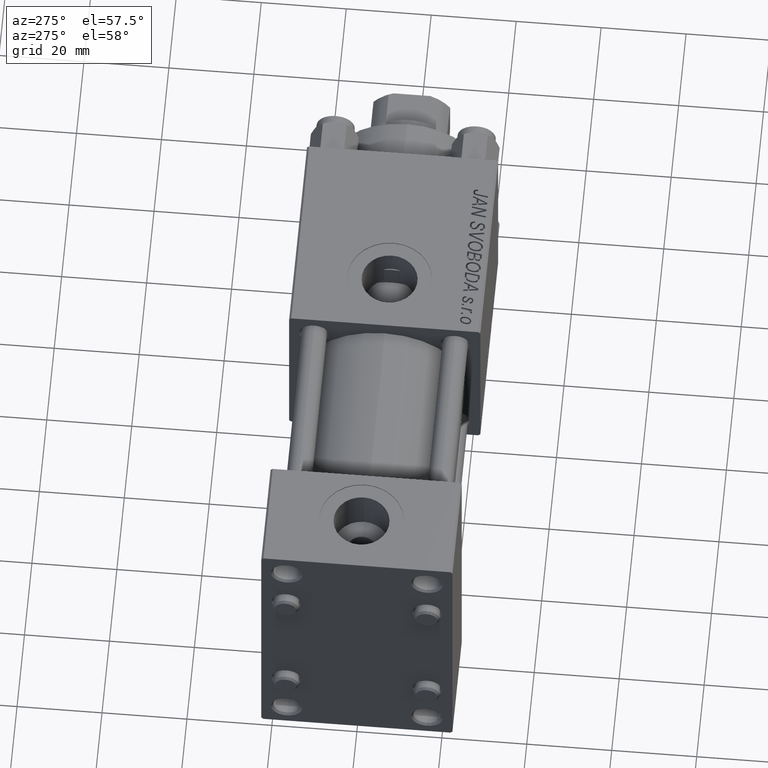
[diagram: clean part render]
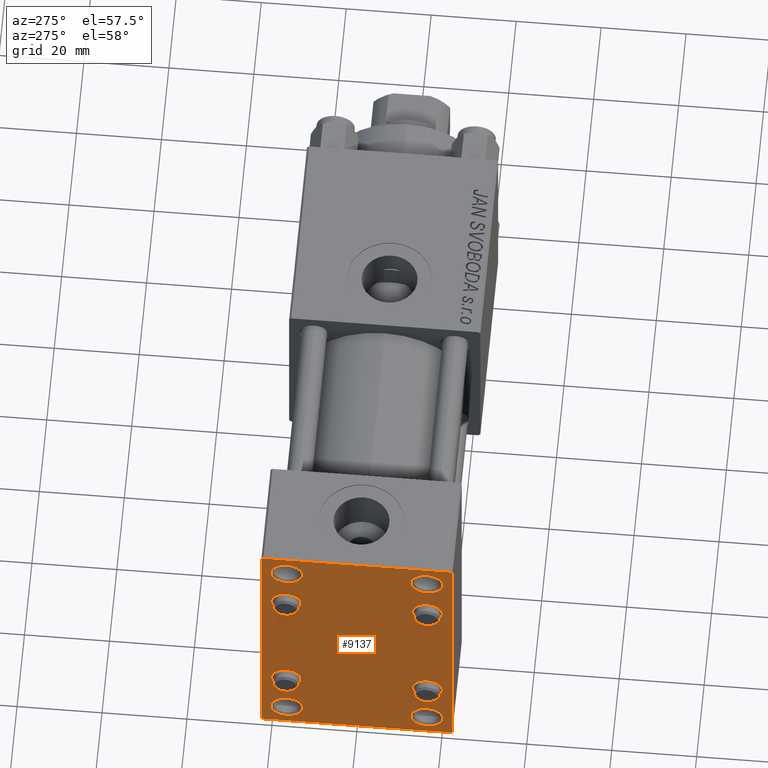
[diagram: same view with one face highlighted and labeled with its STEP entity id]
A machine part, auxiliary view. The second image highlights one B-rep face of the part: STEP entity #9137.
In plain terms, the highlighted planar face has unit normal (-1, 0, 0).
Its self-contained STEP definition (entity closure, byte-faithful):
#227 = VERTEX_POINT ( 'NONE', #2477 ) ;
#798 = DIRECTION ( 'NONE',  ( -1.000000000000000000, 0.000000000000000000, -0.000000000000000000 ) ) ;
#898 = DIRECTION ( 'NONE',  ( 0.000000000000000000, 0.7071067811865376918, -0.7071067811865574537 ) ) ;
#1069 = VERTEX_POINT ( 'NONE', #49465 ) ;
#1468 = ORIENTED_EDGE ( 'NONE', *, *, #22537, .T. ) ;
#1559 = DIRECTION ( 'NONE',  ( 1.000000000000000000, -0.000000000000000000, 0.000000000000000000 ) ) ;
#1585 = VERTEX_POINT ( 'NONE', #9949 ) ;
#1753 = DIRECTION ( 'NONE',  ( 0.000000000000000000, 0.000000000000000000, 1.000000000000000000 ) ) ;
#1759 = ORIENTED_EDGE ( 'NONE', *, *, #24240, .T. ) ;
#1772 = CARTESIAN_POINT ( 'NONE',  ( 0.000000000000000000, 22.50000000000000355, 35.00000000000000711 ) ) ;
#1802 = DIRECTION ( 'NONE',  ( 0.000000000000000000, 0.000000000000000000, 1.000000000000000000 ) ) ;
#1866 = AXIS2_PLACEMENT_3D ( 'NONE', #19837, #35723, #23878 ) ;
#2282 = EDGE_CURVE ( 'NONE', #22545, #38931, #8978, .T. ) ;
#2477 = CARTESIAN_POINT ( 'NONE',  ( 0.000000000000000000, -16.59999999999999076, -20.10000000000000497 ) ) ;
#2502 = CARTESIAN_POINT ( 'NONE',  ( 0.000000000000000000, 16.49999999999999289, -25.25000000000003553 ) ) ;
#3841 = LINE ( 'NONE', #30855, #44626 ) ;
#4108 = VERTEX_POINT ( 'NONE', #26449 ) ;
#4423 = VERTEX_POINT ( 'NONE', #17340 ) ;
#4461 = VECTOR ( 'NONE', #6079, 1000.000000000000000 ) ;
#4536 = CIRCLE ( 'NONE', #5334, 3.749999999999972022 ) ;
#4631 = AXIS2_PLACEMENT_3D ( 'NONE', #47011, #42962, #8354 ) ;
#5013 = CARTESIAN_POINT ( 'NONE',  ( 0.000000000000000000, 16.59999999999999787, -16.60000000000000497 ) ) ;
#5301 = VERTEX_POINT ( 'NONE', #32738 ) ;
#5317 = DIRECTION ( 'NONE',  ( 0.000000000000000000, -1.000000000000000000, -1.541976423090495387E-16 ) ) ;
#5334 = AXIS2_PLACEMENT_3D ( 'NONE', #36348, #10065, #1753 ) ;
#5501 = VERTEX_POINT ( 'NONE', #20334 ) ;
#5532 = EDGE_CURVE ( 'NONE', #5501, #1585, #23662, .T. ) ;
#5779 = DIRECTION ( 'NONE',  ( 1.000000000000000000, -0.000000000000000000, 0.000000000000000000 ) ) ;
#6079 = DIRECTION ( 'NONE',  ( 0.000000000000000000, -1.000000000000000000, -1.541976423090495387E-16 ) ) ;
#6629 = DIRECTION ( 'NONE',  ( 0.000000000000000000, 0.000000000000000000, -1.000000000000000000 ) ) ;
#6984 = DIRECTION ( 'NONE',  ( 1.000000000000000000, -0.000000000000000000, 0.000000000000000000 ) ) ;
#7139 = EDGE_CURVE ( 'NONE', #38931, #10274, #37685, .T. ) ;
#7460 = DIRECTION ( 'NONE',  ( 0.000000000000000000, 0.000000000000000000, 1.000000000000000000 ) ) ;
#7604 = DIRECTION ( 'NONE',  ( 0.000000000000000000, -0.7071067811865426878, 0.7071067811865524577 ) ) ;
#7918 = CARTESIAN_POINT ( 'NONE',  ( 0.000000000000000000, 16.59999999999999787, -16.60000000000000497 ) ) ;
#7964 = VERTEX_POINT ( 'NONE', #35762 ) ;
#8354 = DIRECTION ( 'NONE',  ( 0.000000000000000000, 0.000000000000000000, 1.000000000000000000 ) ) ;
#8413 = DIRECTION ( 'NONE',  ( 1.000000000000000000, -0.000000000000000000, 0.000000000000000000 ) ) ;
#8444 = EDGE_CURVE ( 'NONE', #1585, #5501, #26951, .T. ) ;
#8978 = LINE ( 'NONE', #15810, #34830 ) ;
#9137 = ADVANCED_FACE ( 'NONE', ( #32341, #48016, #28054, #39186, #24287, #9374, #32095, #19999, #12914 ), #35387, .T. ) ;
#9374 = FACE_BOUND ( 'NONE', #16153, .T. ) ;
#9573 = CARTESIAN_POINT ( 'NONE',  ( 0.000000000000000000, 16.49999999999999289, -29.00000000000000711 ) ) ;
#9949 = CARTESIAN_POINT ( 'NONE',  ( 0.000000000000000000, 16.59999999999999787, 13.10000000000000675 ) ) ;
#10065 = DIRECTION ( 'NONE',  ( 1.000000000000000000, -0.000000000000000000, 0.000000000000000000 ) ) ;
#10233 = EDGE_CURVE ( 'NONE', #33217, #25602, #14401, .T. ) ;
#10274 = VERTEX_POINT ( 'NONE', #33329 ) ;
#10430 = AXIS2_PLACEMENT_3D ( 'NONE', #15070, #6984, #26424 ) ;
#10530 = CARTESIAN_POINT ( 'NONE',  ( 0.000000000000000000, -16.59999999999999076, 13.10000000000001030 ) ) ;
#10989 = EDGE_CURVE ( 'NONE', #4108, #34941, #31096, .T. ) ;
#11109 = DIRECTION ( 'NONE',  ( 1.000000000000000000, -0.000000000000000000, 0.000000000000000000 ) ) ;
#11718 = ORIENTED_EDGE ( 'NONE', *, *, #22803, .F. ) ;
#11829 = CIRCLE ( 'NONE', #32003, 3.749999999999972022 ) ;
#11975 = CIRCLE ( 'NONE', #25685, 3.499999999999996003 ) ;
#12005 = VECTOR ( 'NONE', #5317, 1000.000000000000000 ) ;
#12055 = EDGE_CURVE ( 'NONE', #227, #48681, #39194, .T. ) ;
#12156 = LINE ( 'NONE', #30823, #38343 ) ;
#12789 = AXIS2_PLACEMENT_3D ( 'NONE', #5013, #23723, #35577 ) ;
#12914 = FACE_OUTER_BOUND ( 'NONE', #13879, .T. ) ;
#13156 = CARTESIAN_POINT ( 'NONE',  ( 0.000000000000000000, 0.000000000000000000, 0.000000000000000000 ) ) ;
#13406 = DIRECTION ( 'NONE',  ( -0.000000000000000000, 0.000000000000000000, 1.000000000000000000 ) ) ;
#13786 = LINE ( 'NONE', #20873, #47392 ) ;
#13879 = EDGE_LOOP ( 'NONE', ( #40029, #41841, #23654, #29619, #41019, #45631, #11718, #14119 ) ) ;
#13881 = EDGE_LOOP ( 'NONE', ( #28978, #1759 ) ) ;
#13897 = CARTESIAN_POINT ( 'NONE',  ( 0.000000000000000000, 16.59999999999999787, -20.10000000000000142 ) ) ;
#14099 = CARTESIAN_POINT ( 'NONE',  ( 0.000000000000000000, 16.49999999999999289, 32.75000000000003553 ) ) ;
#14119 = ORIENTED_EDGE ( 'NONE', *, *, #2282, .T. ) ;
#14219 = DIRECTION ( 'NONE',  ( 0.000000000000000000, 0.000000000000000000, 1.000000000000000000 ) ) ;
#14401 = LINE ( 'NONE', #14651, #4461 ) ;
#14463 = AXIS2_PLACEMENT_3D ( 'NONE', #45614, #41824, #7460 ) ;
#14651 = CARTESIAN_POINT ( 'NONE',  ( 0.000000000000000000, 22.50000000000000355, -34.99999999999999289 ) ) ;
#15070 = CARTESIAN_POINT ( 'NONE',  ( 0.000000000000000000, 16.49999999999999289, 28.99999999999998934 ) ) ;
#15257 = ORIENTED_EDGE ( 'NONE', *, *, #47745, .T. ) ;
#15494 = ORIENTED_EDGE ( 'NONE', *, *, #49920, .T. ) ;
#15720 = DIRECTION ( 'NONE',  ( 1.000000000000000000, -0.000000000000000000, 0.000000000000000000 ) ) ;
#15810 = CARTESIAN_POINT ( 'NONE',  ( 0.000000000000000000, 28.50000000000030909, 28.49999999999952038 ) ) ;
#16030 = AXIS2_PLACEMENT_3D ( 'NONE', #9573, #5779, #44422 ) ;
#16153 = EDGE_LOOP ( 'NONE', ( #42821, #34555 ) ) ;
#16189 = CARTESIAN_POINT ( 'NONE',  ( 0.000000000000000000, 16.59999999999999787, -13.10000000000000675 ) ) ;
#16489 = ORIENTED_EDGE ( 'NONE', *, *, #45737, .T. ) ;
#16625 = CARTESIAN_POINT ( 'NONE',  ( 0.000000000000000000, 16.49999999999999289, -32.74999999999997868 ) ) ;
#16646 = EDGE_CURVE ( 'NONE', #35562, #1069, #4536, .T. ) ;
#17340 = CARTESIAN_POINT ( 'NONE',  ( 0.000000000000000000, -22.49999999999999645, -34.50000000000000000 ) ) ;
#17365 = CARTESIAN_POINT ( 'NONE',  ( 0.000000000000000000, 21.99999999999999645, -34.99999999999999289 ) ) ;
#17423 = AXIS2_PLACEMENT_3D ( 'NONE', #19449, #11109, #49762 ) ;
#17734 = EDGE_CURVE ( 'NONE', #1069, #35562, #11829, .T. ) ;
#18325 = AXIS2_PLACEMENT_3D ( 'NONE', #28281, #24509, #32319 ) ;
#19035 = DIRECTION ( 'NONE',  ( 0.000000000000000000, 0.000000000000000000, 1.000000000000000000 ) ) ;
#19175 = EDGE_CURVE ( 'NONE', #10274, #33217, #13786, .T. ) ;
#19449 = CARTESIAN_POINT ( 'NONE',  ( 0.000000000000000000, -16.59999999999999076, -16.60000000000000853 ) ) ;
#19837 = CARTESIAN_POINT ( 'NONE',  ( 0.000000000000000000, 16.59999999999999787, 16.60000000000000497 ) ) ;
#19944 = DIRECTION ( 'NONE',  ( 1.000000000000000000, -0.000000000000000000, 0.000000000000000000 ) ) ;
#19999 = FACE_BOUND ( 'NONE', #34586, .T. ) ;
#20150 = CARTESIAN_POINT ( 'NONE',  ( 0.000000000000000000, -16.59999999999999076, -13.10000000000001030 ) ) ;
#20334 = CARTESIAN_POINT ( 'NONE',  ( 0.000000000000000000, 16.59999999999999787, 20.10000000000000142 ) ) ;
#20873 = CARTESIAN_POINT ( 'NONE',  ( 0.000000000000000000, 28.49999999999984013, -28.50000000000024158 ) ) ;
#21272 = EDGE_CURVE ( 'NONE', #40726, #33451, #43425, .T. ) ;
#21304 = VECTOR ( 'NONE', #6629, 1000.000000000000000 ) ;
#21623 = AXIS2_PLACEMENT_3D ( 'NONE', #46828, #24080, #38732 ) ;
#21960 = EDGE_LOOP ( 'NONE', ( #44045, #15494 ) ) ;
#22537 = EDGE_CURVE ( 'NONE', #44504, #43905, #11975, .T. ) ;
#22545 = VERTEX_POINT ( 'NONE', #46568 ) ;
#22616 = DIRECTION ( 'NONE',  ( -0.000000000000000000, -0.7071067811865525687, -0.7071067811865425767 ) ) ;
#22803 = EDGE_CURVE ( 'NONE', #22545, #36429, #43474, .T. ) ;
#22904 = CARTESIAN_POINT ( 'NONE',  ( 0.000000000000000000, -16.50000000000000711, -32.74999999999997868 ) ) ;
#23075 = AXIS2_PLACEMENT_3D ( 'NONE', #32599, #1559, #1802 ) ;
#23299 = DIRECTION ( 'NONE',  ( 0.000000000000000000, 0.000000000000000000, -1.000000000000000000 ) ) ;
#23356 = VECTOR ( 'NONE', #35323, 1000.000000000000000 ) ;
#23654 = ORIENTED_EDGE ( 'NONE', *, *, #10233, .T. ) ;
#23662 = CIRCLE ( 'NONE', #1866, 3.499999999999996003 ) ;
#23716 = DIRECTION ( 'NONE',  ( 1.000000000000000000, -0.000000000000000000, 0.000000000000000000 ) ) ;
#23723 = DIRECTION ( 'NONE',  ( 1.000000000000000000, -0.000000000000000000, 0.000000000000000000 ) ) ;
#23806 = DIRECTION ( 'NONE',  ( 0.000000000000000000, 0.000000000000000000, 1.000000000000000000 ) ) ;
#23878 = DIRECTION ( 'NONE',  ( 0.000000000000000000, 0.000000000000000000, 1.000000000000000000 ) ) ;
#24074 = EDGE_CURVE ( 'NONE', #7964, #36429, #47719, .T. ) ;
#24080 = DIRECTION ( 'NONE',  ( 1.000000000000000000, -0.000000000000000000, 0.000000000000000000 ) ) ;
#24240 = EDGE_CURVE ( 'NONE', #33451, #40726, #32217, .T. ) ;
#24287 = FACE_BOUND ( 'NONE', #21960, .T. ) ;
#24509 = DIRECTION ( 'NONE',  ( 1.000000000000000000, -0.000000000000000000, 0.000000000000000000 ) ) ;
#25102 = CARTESIAN_POINT ( 'NONE',  ( 0.000000000000000000, 16.59999999999999787, 16.60000000000000497 ) ) ;
#25602 = VERTEX_POINT ( 'NONE', #25837 ) ;
#25685 = AXIS2_PLACEMENT_3D ( 'NONE', #7918, #8413, #19035 ) ;
#25837 = CARTESIAN_POINT ( 'NONE',  ( 0.000000000000000000, -21.99999999999998934, -35.00000000000000000 ) ) ;
#26424 = DIRECTION ( 'NONE',  ( 0.000000000000000000, 0.000000000000000000, 1.000000000000000000 ) ) ;
#26449 = CARTESIAN_POINT ( 'NONE',  ( 0.000000000000000000, -16.59999999999999076, 20.10000000000000853 ) ) ;
#26951 = CIRCLE ( 'NONE', #38283, 3.499999999999996003 ) ;
#26998 = DIRECTION ( 'NONE',  ( 0.000000000000000000, 0.000000000000000000, 1.000000000000000000 ) ) ;
#27335 = VERTEX_POINT ( 'NONE', #16625 ) ;
#27548 = CARTESIAN_POINT ( 'NONE',  ( 0.000000000000000000, 16.49999999999999289, 25.24999999999994671 ) ) ;
#28054 = FACE_BOUND ( 'NONE', #36157, .T. ) ;
#28059 = CIRCLE ( 'NONE', #47451, 3.749999999999975575 ) ;
#28125 = CIRCLE ( 'NONE', #16030, 3.749999999999972022 ) ;
#28281 = CARTESIAN_POINT ( 'NONE',  ( 0.000000000000000000, -16.59999999999999076, -16.60000000000000853 ) ) ;
#28478 = CARTESIAN_POINT ( 'NONE',  ( -0.000000000000000000, -28.50000000000015632, 28.49999999999976197 ) ) ;
#28978 = ORIENTED_EDGE ( 'NONE', *, *, #21272, .T. ) ;
#29619 = ORIENTED_EDGE ( 'NONE', *, *, #35463, .T. ) ;
#30635 = ORIENTED_EDGE ( 'NONE', *, *, #46493, .T. ) ;
#30656 = EDGE_CURVE ( 'NONE', #7964, #4423, #3841, .T. ) ;
#30823 = CARTESIAN_POINT ( 'NONE',  ( 0.000000000000000000, -28.50000000000015632, -28.49999999999976197 ) ) ;
#30855 = CARTESIAN_POINT ( 'NONE',  ( 0.000000000000000000, -22.49999999999999645, 35.00000000000000000 ) ) ;
#31096 = CIRCLE ( 'NONE', #23075, 3.499999999999996003 ) ;
#31118 = CIRCLE ( 'NONE', #46467, 3.749999999999975575 ) ;
#31292 = CARTESIAN_POINT ( 'NONE',  ( 0.000000000000000000, -16.50000000000000711, -29.00000000000000711 ) ) ;
#32003 = AXIS2_PLACEMENT_3D ( 'NONE', #31292, #19944, #26998 ) ;
#32061 = CIRCLE ( 'NONE', #18325, 3.499999999999996003 ) ;
#32095 = FACE_BOUND ( 'NONE', #38661, .T. ) ;
#32217 = CIRCLE ( 'NONE', #10430, 3.750000000000044853 ) ;
#32320 = ORIENTED_EDGE ( 'NONE', *, *, #44533, .T. ) ;
#32319 = DIRECTION ( 'NONE',  ( 0.000000000000000000, 0.000000000000000000, 1.000000000000000000 ) ) ;
#32341 = FACE_BOUND ( 'NONE', #13881, .T. ) ;
#32591 = CARTESIAN_POINT ( 'NONE',  ( 0.000000000000000000, -21.99999999999998934, 35.00000000000000000 ) ) ;
#32599 = CARTESIAN_POINT ( 'NONE',  ( 0.000000000000000000, -16.59999999999999076, 16.60000000000000853 ) ) ;
#32738 = CARTESIAN_POINT ( 'NONE',  ( 0.000000000000000000, -16.50000000000000711, 32.74999999999996447 ) ) ;
#32948 = VERTEX_POINT ( 'NONE', #2502 ) ;
#33217 = VERTEX_POINT ( 'NONE', #17365 ) ;
#33329 = CARTESIAN_POINT ( 'NONE',  ( 0.000000000000000000, 22.50000000000000355, -34.49999999999999289 ) ) ;
#33451 = VERTEX_POINT ( 'NONE', #27548 ) ;
#34167 = ORIENTED_EDGE ( 'NONE', *, *, #17734, .T. ) ;
#34555 = ORIENTED_EDGE ( 'NONE', *, *, #12055, .T. ) ;
#34573 = CARTESIAN_POINT ( 'NONE',  ( 0.000000000000000000, -16.50000000000000711, 28.99999999999998934 ) ) ;
#34586 = EDGE_LOOP ( 'NONE', ( #42149, #49910 ) ) ;
#34830 = VECTOR ( 'NONE', #898, 999.9999999999998863 ) ;
#34941 = VERTEX_POINT ( 'NONE', #10530 ) ;
#35323 = DIRECTION ( 'NONE',  ( -0.000000000000000000, 0.7071067811865426878, 0.7071067811865524577 ) ) ;
#35387 = PLANE ( 'NONE',  #35872 ) ;
#35463 = EDGE_CURVE ( 'NONE', #25602, #4423, #12156, .T. ) ;
#35562 = VERTEX_POINT ( 'NONE', #22904 ) ;
#35577 = DIRECTION ( 'NONE',  ( 0.000000000000000000, 0.000000000000000000, 1.000000000000000000 ) ) ;
#35723 = DIRECTION ( 'NONE',  ( 1.000000000000000000, -0.000000000000000000, 0.000000000000000000 ) ) ;
#35762 = CARTESIAN_POINT ( 'NONE',  ( 0.000000000000000000, -22.49999999999999645, 34.50000000000000000 ) ) ;
#35872 = AXIS2_PLACEMENT_3D ( 'NONE', #13156, #798, #13406 ) ;
#36132 = CIRCLE ( 'NONE', #12789, 3.499999999999996003 ) ;
#36157 = EDGE_LOOP ( 'NONE', ( #34167, #38608 ) ) ;
#36348 = CARTESIAN_POINT ( 'NONE',  ( 0.000000000000000000, -16.50000000000000711, -29.00000000000000711 ) ) ;
#36429 = VERTEX_POINT ( 'NONE', #32591 ) ;
#37320 = EDGE_CURVE ( 'NONE', #5301, #45357, #31118, .T. ) ;
#37685 = LINE ( 'NONE', #45533, #21304 ) ;
#37696 = DIRECTION ( 'NONE',  ( 1.000000000000000000, -0.000000000000000000, 0.000000000000000000 ) ) ;
#38283 = AXIS2_PLACEMENT_3D ( 'NONE', #25102, #37696, #14219 ) ;
#38343 = VECTOR ( 'NONE', #7604, 1000.000000000000000 ) ;
#38608 = ORIENTED_EDGE ( 'NONE', *, *, #16646, .T. ) ;
#38661 = EDGE_LOOP ( 'NONE', ( #1468, #30635 ) ) ;
#38732 = DIRECTION ( 'NONE',  ( 0.000000000000000000, 0.000000000000000000, 1.000000000000000000 ) ) ;
#38931 = VERTEX_POINT ( 'NONE', #43052 ) ;
#39186 = FACE_BOUND ( 'NONE', #44741, .T. ) ;
#39194 = CIRCLE ( 'NONE', #17423, 3.499999999999996003 ) ;
#39672 = CARTESIAN_POINT ( 'NONE',  ( 0.000000000000000000, -16.50000000000000711, 25.25000000000001421 ) ) ;
#40029 = ORIENTED_EDGE ( 'NONE', *, *, #7139, .T. ) ;
#40726 = VERTEX_POINT ( 'NONE', #14099 ) ;
#41019 = ORIENTED_EDGE ( 'NONE', *, *, #30656, .F. ) ;
#41732 = CIRCLE ( 'NONE', #4631, 3.749999999999972022 ) ;
#41824 = DIRECTION ( 'NONE',  ( 1.000000000000000000, -0.000000000000000000, 0.000000000000000000 ) ) ;
#41841 = ORIENTED_EDGE ( 'NONE', *, *, #19175, .T. ) ;
#42149 = ORIENTED_EDGE ( 'NONE', *, *, #5532, .T. ) ;
#42533 = ORIENTED_EDGE ( 'NONE', *, *, #37320, .T. ) ;
#42662 = DIRECTION ( 'NONE',  ( 0.000000000000000000, 0.000000000000000000, 1.000000000000000000 ) ) ;
#42715 = CIRCLE ( 'NONE', #14463, 3.499999999999996003 ) ;
#42821 = ORIENTED_EDGE ( 'NONE', *, *, #44583, .T. ) ;
#42962 = DIRECTION ( 'NONE',  ( 1.000000000000000000, -0.000000000000000000, 0.000000000000000000 ) ) ;
#43052 = CARTESIAN_POINT ( 'NONE',  ( 0.000000000000000000, 22.50000000000000355, 34.49999999999999289 ) ) ;
#43425 = CIRCLE ( 'NONE', #21623, 3.750000000000044853 ) ;
#43474 = LINE ( 'NONE', #1772, #12005 ) ;
#43905 = VERTEX_POINT ( 'NONE', #13897 ) ;
#44045 = ORIENTED_EDGE ( 'NONE', *, *, #10989, .T. ) ;
#44422 = DIRECTION ( 'NONE',  ( 0.000000000000000000, 0.000000000000000000, 1.000000000000000000 ) ) ;
#44504 = VERTEX_POINT ( 'NONE', #16189 ) ;
#44533 = EDGE_CURVE ( 'NONE', #27335, #32948, #41732, .T. ) ;
#44583 = EDGE_CURVE ( 'NONE', #48681, #227, #32061, .T. ) ;
#44626 = VECTOR ( 'NONE', #23299, 1000.000000000000000 ) ;
#44741 = EDGE_LOOP ( 'NONE', ( #15257, #32320 ) ) ;
#45357 = VERTEX_POINT ( 'NONE', #39672 ) ;
#45533 = CARTESIAN_POINT ( 'NONE',  ( 0.000000000000000000, 22.50000000000000355, 35.00000000000000711 ) ) ;
#45614 = CARTESIAN_POINT ( 'NONE',  ( 0.000000000000000000, -16.59999999999999076, 16.60000000000000853 ) ) ;
#45631 = ORIENTED_EDGE ( 'NONE', *, *, #24074, .T. ) ;
#45737 = EDGE_CURVE ( 'NONE', #45357, #5301, #28059, .T. ) ;
#46467 = AXIS2_PLACEMENT_3D ( 'NONE', #47046, #15720, #23806 ) ;
#46493 = EDGE_CURVE ( 'NONE', #43905, #44504, #36132, .T. ) ;
#46568 = CARTESIAN_POINT ( 'NONE',  ( 0.000000000000000000, 22.00000000000000355, 35.00000000000000711 ) ) ;
#46828 = CARTESIAN_POINT ( 'NONE',  ( 0.000000000000000000, 16.49999999999999289, 28.99999999999998934 ) ) ;
#47011 = CARTESIAN_POINT ( 'NONE',  ( 0.000000000000000000, 16.49999999999999289, -29.00000000000000711 ) ) ;
#47046 = CARTESIAN_POINT ( 'NONE',  ( 0.000000000000000000, -16.50000000000000711, 28.99999999999998934 ) ) ;
#47392 = VECTOR ( 'NONE', #22616, 999.9999999999998863 ) ;
#47451 = AXIS2_PLACEMENT_3D ( 'NONE', #34573, #23716, #42662 ) ;
#47719 = LINE ( 'NONE', #28478, #23356 ) ;
#47745 = EDGE_CURVE ( 'NONE', #32948, #27335, #28125, .T. ) ;
#48016 = FACE_BOUND ( 'NONE', #48375, .T. ) ;
#48375 = EDGE_LOOP ( 'NONE', ( #42533, #16489 ) ) ;
#48681 = VERTEX_POINT ( 'NONE', #20150 ) ;
#49465 = CARTESIAN_POINT ( 'NONE',  ( 0.000000000000000000, -16.50000000000000711, -25.25000000000003553 ) ) ;
#49762 = DIRECTION ( 'NONE',  ( 0.000000000000000000, 0.000000000000000000, 1.000000000000000000 ) ) ;
#49910 = ORIENTED_EDGE ( 'NONE', *, *, #8444, .T. ) ;
#49920 = EDGE_CURVE ( 'NONE', #34941, #4108, #42715, .T. ) ;